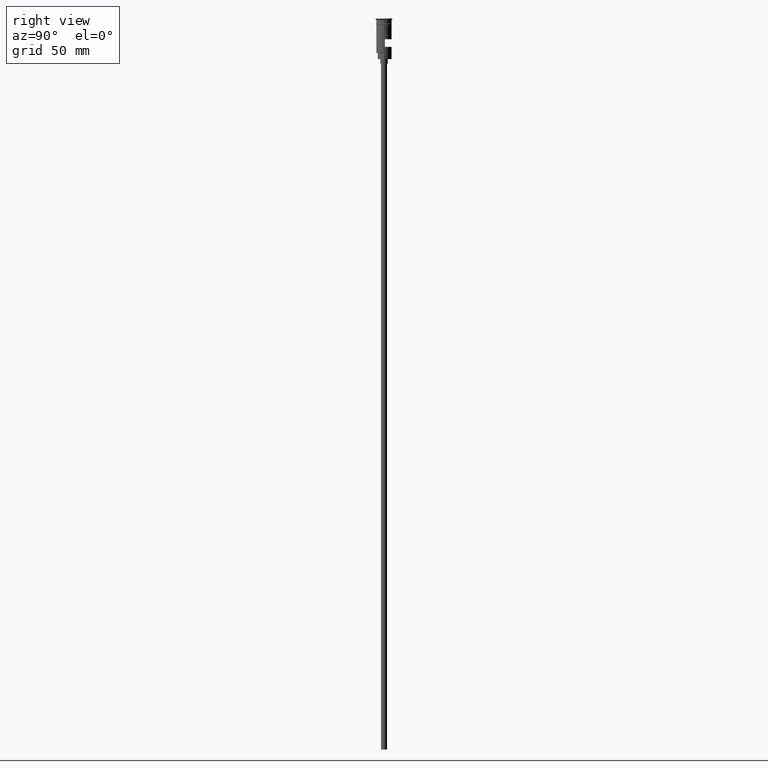
[diagram: clean part render]
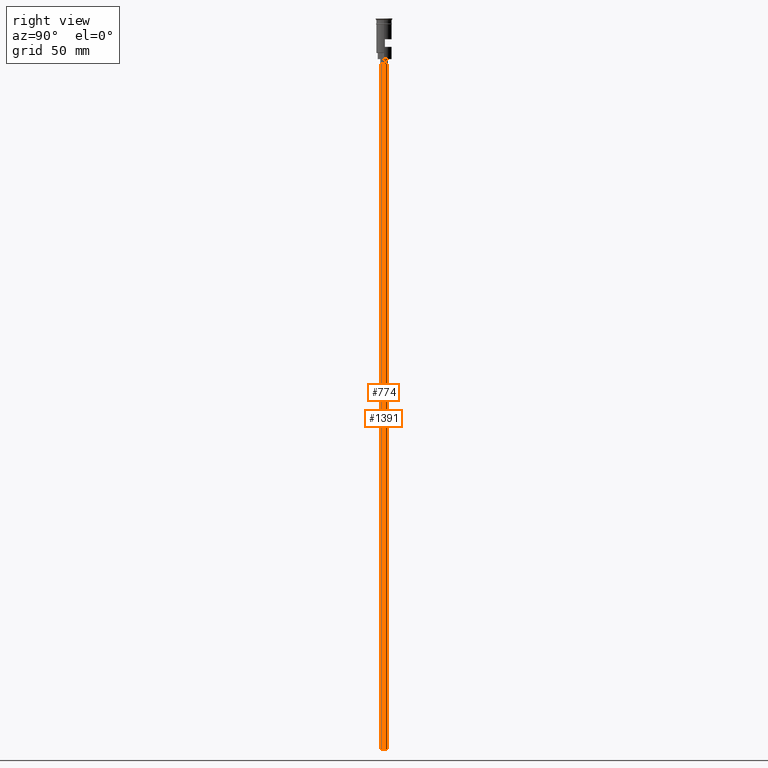
[diagram: same view with one multi-face feature highlighted, each face labeled with its STEP entity id]
A machine part, right view. The highlighted faces form ONE feature: a constant-radius fillet chain: 2 tangent blend faces with common blend radius 2 mm. The faces share edges in the B-rep.
Their STEP definitions:
[1] entity #774 (Cylinder):
#69 = DIRECTION ( 'NONE',  ( -1.000000000000000000, 0.000000000000000000, 0.000000000000000000 ) ) ;
#96 = CARTESIAN_POINT ( 'NONE',  ( 0.000000000000000000, 0.000000000000000000, -29.50000000000000000 ) ) ;
#146 = DIRECTION ( 'NONE',  ( -0.000000000000000000, -0.000000000000000000, 1.000000000000000000 ) ) ;
#230 = CARTESIAN_POINT ( 'NONE',  ( 2.000000000000000000, 0.000000000000000000, -29.50000000000000000 ) ) ;
#242 = VECTOR ( 'NONE', #146, 1000.000000000000000 ) ;
#308 = CYLINDRICAL_SURFACE ( 'NONE', #1062, 2.000000000000000000 ) ;
#353 = ORIENTED_EDGE ( 'NONE', *, *, #1158, .F. ) ;
#398 = DIRECTION ( 'NONE',  ( -1.000000000000000000, 0.000000000000000000, 0.000000000000000000 ) ) ;
#399 = ORIENTED_EDGE ( 'NONE', *, *, #1570, .T. ) ;
#444 = CARTESIAN_POINT ( 'NONE',  ( -2.000000000000000000, 2.449293598294706414E-16, -29.50000000000000000 ) ) ;
#459 = EDGE_CURVE ( 'NONE', #875, #489, #1268, .T. ) ;
#489 = VERTEX_POINT ( 'NONE', #230 ) ;
#491 = CIRCLE ( 'NONE', #625, 2.000000000000000000 ) ;
#519 = VECTOR ( 'NONE', #1125, 1000.000000000000000 ) ;
#523 = CARTESIAN_POINT ( 'NONE',  ( -2.000000000000000000, 2.449293598294706414E-16, -476.5000000000000568 ) ) ;
#530 = LINE ( 'NONE', #523, #242 ) ;
#542 = CARTESIAN_POINT ( 'NONE',  ( 0.000000000000000000, 0.000000000000000000, -476.5000000000000568 ) ) ;
#575 = CARTESIAN_POINT ( 'NONE',  ( 2.000000000000000000, 0.000000000000000000, -476.5000000000000568 ) ) ;
#604 = LINE ( 'NONE', #1482, #519 ) ;
#625 = AXIS2_PLACEMENT_3D ( 'NONE', #1153, #1412, #398 ) ;
#717 = ORIENTED_EDGE ( 'NONE', *, *, #459, .T. ) ;
#721 = AXIS2_PLACEMENT_3D ( 'NONE', #96, #1565, #69 ) ;
#774 = ADVANCED_FACE ( 'NONE', ( #1414 ), #308, .T. ) ;
#875 = VERTEX_POINT ( 'NONE', #444 ) ;
#974 = VERTEX_POINT ( 'NONE', #1375 ) ;
#1028 = ORIENTED_EDGE ( 'NONE', *, *, #1401, .F. ) ;
#1038 = DIRECTION ( 'NONE',  ( 1.000000000000000000, 0.000000000000000000, 0.000000000000000000 ) ) ;
#1062 = AXIS2_PLACEMENT_3D ( 'NONE', #542, #1390, #1038 ) ;
#1125 = DIRECTION ( 'NONE',  ( -0.000000000000000000, -0.000000000000000000, 1.000000000000000000 ) ) ;
#1153 = CARTESIAN_POINT ( 'NONE',  ( 0.000000000000000000, 0.000000000000000000, -476.5000000000000568 ) ) ;
#1158 = EDGE_CURVE ( 'NONE', #974, #1356, #491, .T. ) ;
#1268 = CIRCLE ( 'NONE', #721, 2.000000000000000000 ) ;
#1356 = VERTEX_POINT ( 'NONE', #575 ) ;
#1375 = CARTESIAN_POINT ( 'NONE',  ( -2.000000000000000000, 2.449293598294706414E-16, -476.5000000000000568 ) ) ;
#1390 = DIRECTION ( 'NONE',  ( -0.000000000000000000, -0.000000000000000000, 1.000000000000000000 ) ) ;
#1401 = EDGE_CURVE ( 'NONE', #1356, #489, #604, .T. ) ;
#1412 = DIRECTION ( 'NONE',  ( 0.000000000000000000, 0.000000000000000000, -1.000000000000000000 ) ) ;
#1414 = FACE_OUTER_BOUND ( 'NONE', #1568, .T. ) ;
#1482 = CARTESIAN_POINT ( 'NONE',  ( 2.000000000000000000, 0.000000000000000000, -476.5000000000000568 ) ) ;
#1565 = DIRECTION ( 'NONE',  ( 0.000000000000000000, 0.000000000000000000, -1.000000000000000000 ) ) ;
#1568 = EDGE_LOOP ( 'NONE', ( #353, #399, #717, #1028 ) ) ;
#1570 = EDGE_CURVE ( 'NONE', #974, #875, #530, .T. ) ;
[2] entity #1391 (Cylinder):
#98 = DIRECTION ( 'NONE',  ( 1.000000000000000000, 0.000000000000000000, 0.000000000000000000 ) ) ;
#127 = AXIS2_PLACEMENT_3D ( 'NONE', #1042, #927, #177 ) ;
#146 = DIRECTION ( 'NONE',  ( -0.000000000000000000, -0.000000000000000000, 1.000000000000000000 ) ) ;
#177 = DIRECTION ( 'NONE',  ( -1.000000000000000000, 0.000000000000000000, 0.000000000000000000 ) ) ;
#230 = CARTESIAN_POINT ( 'NONE',  ( 2.000000000000000000, 0.000000000000000000, -29.50000000000000000 ) ) ;
#240 = AXIS2_PLACEMENT_3D ( 'NONE', #1239, #629, #98 ) ;
#242 = VECTOR ( 'NONE', #146, 1000.000000000000000 ) ;
#275 = EDGE_CURVE ( 'NONE', #489, #875, #1371, .T. ) ;
#337 = AXIS2_PLACEMENT_3D ( 'NONE', #911, #1400, #926 ) ;
#444 = CARTESIAN_POINT ( 'NONE',  ( -2.000000000000000000, 2.449293598294706414E-16, -29.50000000000000000 ) ) ;
#474 = FACE_OUTER_BOUND ( 'NONE', #1347, .T. ) ;
#489 = VERTEX_POINT ( 'NONE', #230 ) ;
#519 = VECTOR ( 'NONE', #1125, 1000.000000000000000 ) ;
#523 = CARTESIAN_POINT ( 'NONE',  ( -2.000000000000000000, 2.449293598294706414E-16, -476.5000000000000568 ) ) ;
#530 = LINE ( 'NONE', #523, #242 ) ;
#533 = ORIENTED_EDGE ( 'NONE', *, *, #275, .T. ) ;
#575 = CARTESIAN_POINT ( 'NONE',  ( 2.000000000000000000, 0.000000000000000000, -476.5000000000000568 ) ) ;
#604 = LINE ( 'NONE', #1482, #519 ) ;
#629 = DIRECTION ( 'NONE',  ( -0.000000000000000000, -0.000000000000000000, 1.000000000000000000 ) ) ;
#738 = EDGE_CURVE ( 'NONE', #1356, #974, #828, .T. ) ;
#828 = CIRCLE ( 'NONE', #337, 2.000000000000000000 ) ;
#875 = VERTEX_POINT ( 'NONE', #444 ) ;
#911 = CARTESIAN_POINT ( 'NONE',  ( 0.000000000000000000, 0.000000000000000000, -476.5000000000000568 ) ) ;
#926 = DIRECTION ( 'NONE',  ( -1.000000000000000000, 0.000000000000000000, 0.000000000000000000 ) ) ;
#927 = DIRECTION ( 'NONE',  ( 0.000000000000000000, 0.000000000000000000, -1.000000000000000000 ) ) ;
#974 = VERTEX_POINT ( 'NONE', #1375 ) ;
#1042 = CARTESIAN_POINT ( 'NONE',  ( 0.000000000000000000, 0.000000000000000000, -29.50000000000000000 ) ) ;
#1125 = DIRECTION ( 'NONE',  ( -0.000000000000000000, -0.000000000000000000, 1.000000000000000000 ) ) ;
#1239 = CARTESIAN_POINT ( 'NONE',  ( 0.000000000000000000, 0.000000000000000000, -476.5000000000000568 ) ) ;
#1285 = ORIENTED_EDGE ( 'NONE', *, *, #738, .F. ) ;
#1347 = EDGE_LOOP ( 'NONE', ( #1419, #1285, #1431, #533 ) ) ;
#1356 = VERTEX_POINT ( 'NONE', #575 ) ;
#1371 = CIRCLE ( 'NONE', #127, 2.000000000000000000 ) ;
#1375 = CARTESIAN_POINT ( 'NONE',  ( -2.000000000000000000, 2.449293598294706414E-16, -476.5000000000000568 ) ) ;
#1391 = ADVANCED_FACE ( 'NONE', ( #474 ), #1456, .T. ) ;
#1400 = DIRECTION ( 'NONE',  ( 0.000000000000000000, 0.000000000000000000, -1.000000000000000000 ) ) ;
#1401 = EDGE_CURVE ( 'NONE', #1356, #489, #604, .T. ) ;
#1419 = ORIENTED_EDGE ( 'NONE', *, *, #1570, .F. ) ;
#1431 = ORIENTED_EDGE ( 'NONE', *, *, #1401, .T. ) ;
#1456 = CYLINDRICAL_SURFACE ( 'NONE', #240, 2.000000000000000000 ) ;
#1482 = CARTESIAN_POINT ( 'NONE',  ( 2.000000000000000000, 0.000000000000000000, -476.5000000000000568 ) ) ;
#1570 = EDGE_CURVE ( 'NONE', #974, #875, #530, .T. ) ;